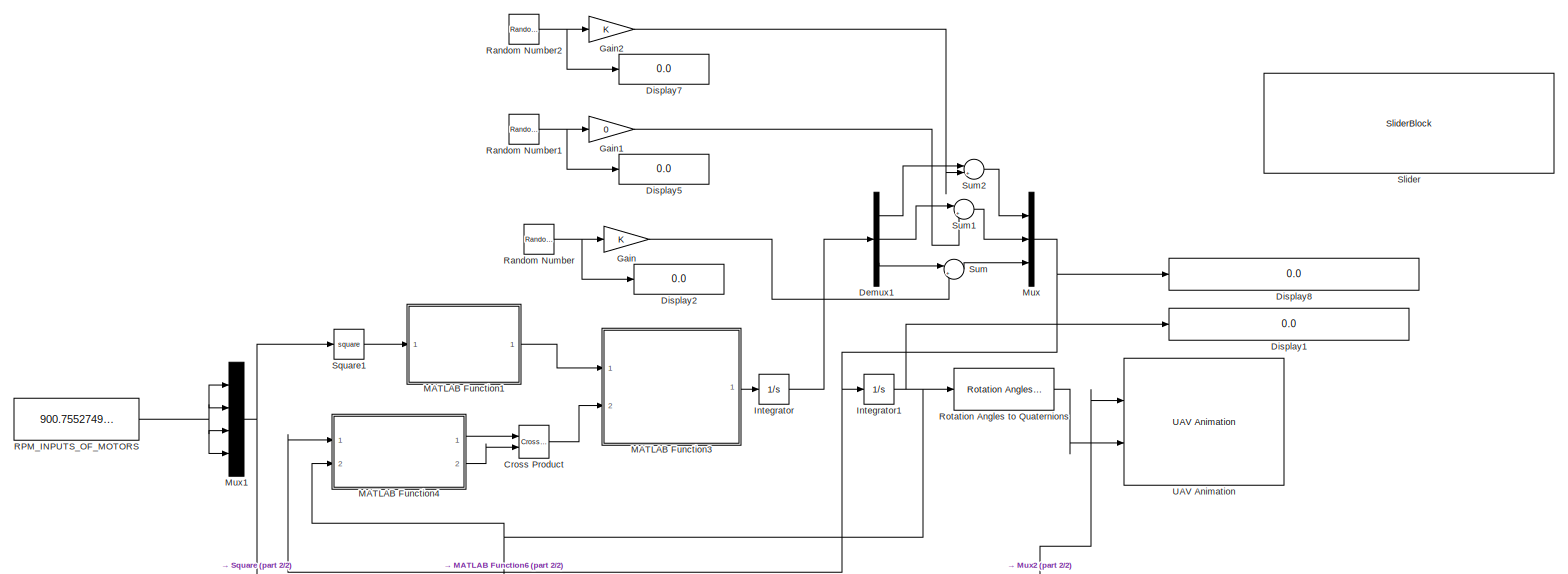
[diagram: root canvas - part 1/2, full width, middle band]
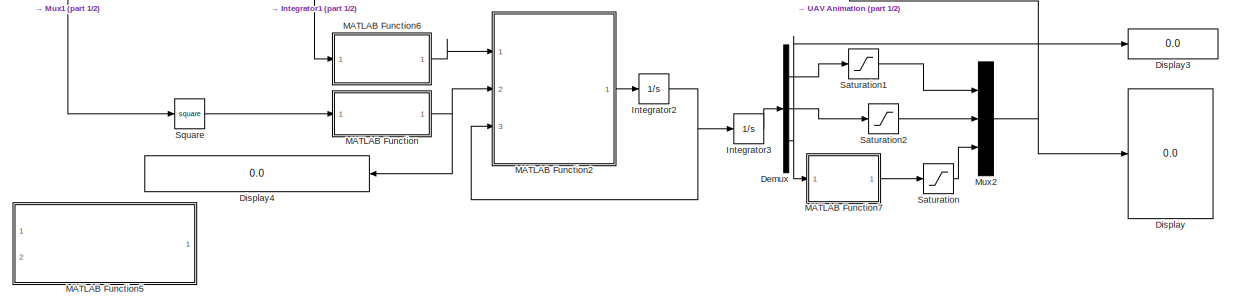
[diagram: root canvas - part 2/2, full width, bottom band]
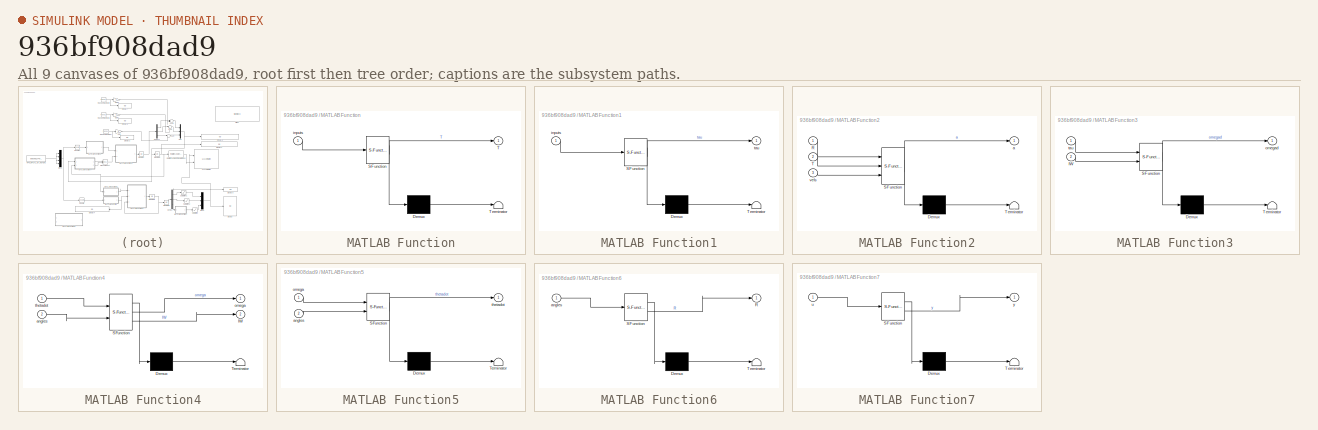
[diagram: thumbnail index - all 9 canvases of the model, root first then tree order]
MODEL slx_936bf908dad9
KIND model
CONFIG AbsTol = auto
CONFIG EnableMultiTasking = off
CONFIG FixedStep = auto
CONFIG MaxStep = auto
CONFIG MinStep = auto
CONFIG RelTol = 1e-3
CONFIG SampleTimeConstraint = Unconstrained
CONFIG Solver = VariableStepAuto
CONFIG SolverName = VariableStepAuto
CONFIG StartTime = 0.0
CONFIG StopTime = inf
BLOCK [Reference] Cross Product  REF=vrlib/Utilities/Cross Product
  Ports = [2, 1]
  SourceBlock = vrlib/Utilities/Cross Product
  SourceProductBaseCode = SL
  SourceType = Cross Product
BLOCK [Demux] Demux
  Outputs = 3
  Ports = [1, 3]
BLOCK [Demux] Demux1
  Outputs = 3
  Ports = [1, 3]
BLOCK [Display] Display
  Decimation = 1
  Ports = [1]
BLOCK [Display] Display1
  Decimation = 1
  Ports = [1]
BLOCK [Display] Display2
  Decimation = 1
  Ports = [1]
BLOCK [Display] Display3
  Decimation = 1
  Ports = [1]
BLOCK [Display] Display4
  Decimation = 1
  NameLocation = top
  Ports = [1]
BLOCK [Display] Display5
  Decimation = 1
  Ports = [1]
BLOCK [Display] Display7
  Decimation = 1
  Ports = [1]
BLOCK [Display] Display8
  Decimation = 1
  Ports = [1]
BLOCK [Gain] Gain
BLOCK [Gain] Gain1
  Gain = 0
BLOCK [Gain] Gain2
BLOCK [Integrator] Integrator
  Ports = [1, 1]
BLOCK [Integrator] Integrator1
  Ports = [1, 1]
BLOCK [Integrator] Integrator2
  Ports = [1, 1]
BLOCK [Integrator] Integrator3
  Ports = [1, 1]
BLOCK [SubSystem] MATLAB Function
  ErrorFcn = Stateflow.Translate.translate
  PermitHierarchicalResolution = ExplicitOnly
  Ports = [1, 1]
  RequestExecContextInheritance = off
  SFBlockType = MATLAB Function
  TreatAsAtomicUnit = on
BLOCK [Demux] MATLAB Function/ Demux 
  Outputs = 1
  Ports = [1, 1]
BLOCK [S-Function] MATLAB Function/ SFunction 
  EnableBusSupport = on
  FunctionName = sf_sfun
  PortCounts = [1 2]
  Ports = [1, 2]
  SFcnIsStateOwnerBlock = off
  SFunctionDeploymentMode = off
  Tag = Stateflow S-Function 2
BLOCK [Terminator] MATLAB Function/ Terminator 
BLOCK [Outport] MATLAB Function/T
BLOCK [Inport] MATLAB Function/inputs
BLOCK [SubSystem] MATLAB Function1
  ErrorFcn = Stateflow.Translate.translate
  PermitHierarchicalResolution = ExplicitOnly
  Ports = [1, 1]
  RequestExecContextInheritance = off
  SFBlockType = MATLAB Function
  TreatAsAtomicUnit = on
BLOCK [Demux] MATLAB Function1/ Demux 
  Outputs = 1
  Ports = [1, 1]
BLOCK [S-Function] MATLAB Function1/ SFunction 
  EnableBusSupport = on
  FunctionName = sf_sfun
  PortCounts = [1 2]
  Ports = [1, 2]
  SFcnIsStateOwnerBlock = off
  SFunctionDeploymentMode = off
  Tag = Stateflow S-Function 1
BLOCK [Terminator] MATLAB Function1/ Terminator 
BLOCK [Inport] MATLAB Function1/inputs
BLOCK [Outport] MATLAB Function1/tau
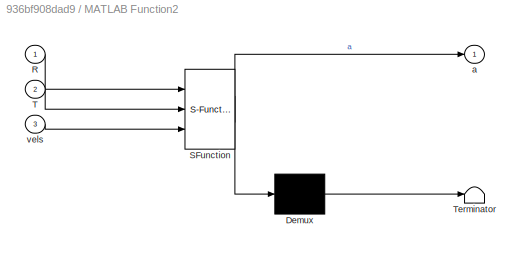
BLOCK [SubSystem] MATLAB Function2
  ErrorFcn = Stateflow.Translate.translate
  PermitHierarchicalResolution = ExplicitOnly
  Ports = [3, 1]
  RequestExecContextInheritance = off
  SFBlockType = MATLAB Function
  TreatAsAtomicUnit = on
BLOCK [Demux] MATLAB Function2/ Demux 
  Outputs = 1
  Ports = [1, 1]
BLOCK [S-Function] MATLAB Function2/ SFunction 
  EnableBusSupport = on
  FunctionName = sf_sfun
  PortCounts = [3 2]
  Ports = [3, 2]
  SFcnIsStateOwnerBlock = off
  SFunctionDeploymentMode = off
  Tag = Stateflow S-Function 3
BLOCK [Terminator] MATLAB Function2/ Terminator 
BLOCK [Inport] MATLAB Function2/R
BLOCK [Inport] MATLAB Function2/T
  Port = 2
BLOCK [Outport] MATLAB Function2/a
BLOCK [Inport] MATLAB Function2/vels
  Port = 3
BLOCK [SubSystem] MATLAB Function3
  ErrorFcn = Stateflow.Translate.translate
  PermitHierarchicalResolution = ExplicitOnly
  Ports = [2, 1]
  RequestExecContextInheritance = off
  SFBlockType = MATLAB Function
  TreatAsAtomicUnit = on
BLOCK [Demux] MATLAB Function3/ Demux 
  Outputs = 1
  Ports = [1, 1]
BLOCK [S-Function] MATLAB Function3/ SFunction 
  EnableBusSupport = on
  FunctionName = sf_sfun
  PortCounts = [2 2]
  Ports = [2, 2]
  SFcnIsStateOwnerBlock = off
  SFunctionDeploymentMode = off
  Tag = Stateflow S-Function 4
BLOCK [Terminator] MATLAB Function3/ Terminator 
BLOCK [Inport] MATLAB Function3/IW
  Port = 2
BLOCK [Outport] MATLAB Function3/omegad
BLOCK [Inport] MATLAB Function3/tau
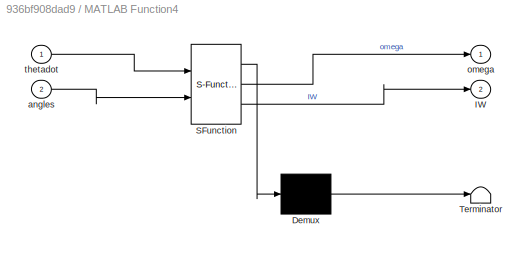
BLOCK [SubSystem] MATLAB Function4
  ErrorFcn = Stateflow.Translate.translate
  PermitHierarchicalResolution = ExplicitOnly
  Ports = [2, 2]
  RequestExecContextInheritance = off
  SFBlockType = MATLAB Function
  TreatAsAtomicUnit = on
BLOCK [Demux] MATLAB Function4/ Demux 
  Outputs = 1
  Ports = [1, 1]
BLOCK [S-Function] MATLAB Function4/ SFunction 
  EnableBusSupport = on
  FunctionName = sf_sfun
  PortCounts = [2 3]
  Ports = [2, 3]
  SFcnIsStateOwnerBlock = off
  SFunctionDeploymentMode = off
  Tag = Stateflow S-Function 5
BLOCK [Terminator] MATLAB Function4/ Terminator 
BLOCK [Outport] MATLAB Function4/IW
  Port = 2
BLOCK [Inport] MATLAB Function4/angles
  Port = 2
BLOCK [Outport] MATLAB Function4/omega
BLOCK [Inport] MATLAB Function4/thetadot
BLOCK [SubSystem] MATLAB Function5
  Commented = on
  ErrorFcn = Stateflow.Translate.translate
  PermitHierarchicalResolution = ExplicitOnly
  Ports = [2, 1]
  RequestExecContextInheritance = off
  SFBlockType = MATLAB Function
  TreatAsAtomicUnit = on
BLOCK [Demux] MATLAB Function5/ Demux 
  Outputs = 1
  Ports = [1, 1]
BLOCK [S-Function] MATLAB Function5/ SFunction 
  EnableBusSupport = on
  FunctionName = sf_sfun
  PortCounts = [2 2]
  Ports = [2, 2]
  SFcnIsStateOwnerBlock = off
  SFunctionDeploymentMode = off
  Tag = Stateflow S-Function 6
BLOCK [Terminator] MATLAB Function5/ Terminator 
BLOCK [Inport] MATLAB Function5/angles
  Port = 2
BLOCK [Inport] MATLAB Function5/omega
BLOCK [Outport] MATLAB Function5/thetadot
BLOCK [SubSystem] MATLAB Function6
  ErrorFcn = Stateflow.Translate.translate
  PermitHierarchicalResolution = ExplicitOnly
  Ports = [1, 1]
  RequestExecContextInheritance = off
  SFBlockType = MATLAB Function
  TreatAsAtomicUnit = on
BLOCK [Demux] MATLAB Function6/ Demux 
  Outputs = 1
  Ports = [1, 1]
BLOCK [S-Function] MATLAB Function6/ SFunction 
  EnableBusSupport = on
  FunctionName = sf_sfun
  PortCounts = [1 2]
  Ports = [1, 2]
  SFcnIsStateOwnerBlock = off
  SFunctionDeploymentMode = off
  Tag = Stateflow S-Function 7
BLOCK [Terminator] MATLAB Function6/ Terminator 
BLOCK [Outport] MATLAB Function6/R
BLOCK [Inport] MATLAB Function6/angles
BLOCK [SubSystem] MATLAB Function7
  ErrorFcn = Stateflow.Translate.translate
  PermitHierarchicalResolution = ExplicitOnly
  Ports = [1, 1]
  RequestExecContextInheritance = off
  SFBlockType = MATLAB Function
  TreatAsAtomicUnit = on
BLOCK [Demux] MATLAB Function7/ Demux 
  Outputs = 1
  Ports = [1, 1]
BLOCK [S-Function] MATLAB Function7/ SFunction 
  EnableBusSupport = on
  FunctionName = sf_sfun
  PortCounts = [1 2]
  Ports = [1, 2]
  SFcnIsStateOwnerBlock = off
  SFunctionDeploymentMode = off
  Tag = Stateflow S-Function 8
BLOCK [Terminator] MATLAB Function7/ Terminator 
BLOCK [Inport] MATLAB Function7/u
BLOCK [Outport] MATLAB Function7/y
BLOCK [Mux] Mux
  DisplayOption = bar
  Inputs = 3
  Ports = [3, 1]
BLOCK [Mux] Mux1
  DisplayOption = bar
  Ports = [4, 1]
BLOCK [Mux] Mux2
  DisplayOption = bar
  Inputs = 3
  Ports = [3, 1]
BLOCK [Constant] RPM_INPUTS_OF_MOTORS
  Value = 900.7552749360614
BLOCK [RandomNumber] Random Number
BLOCK [RandomNumber] Random Number1
BLOCK [RandomNumber] Random Number2
BLOCK [Reference] Rotation Angles to Quaternions  REF=sharedtransform/Rotation Angles to Quaternions
  AttributesFormatString = Rotation Order: %<rotationOrder>
  Ports = [1, 1]
  SourceBlock = sharedtransform/Rotation Angles to Quaternions
  SourceProductBaseCode = AE,PW,MT,VE,VP
  SourceType = Ang2Quat
BLOCK [Saturate] Saturation
  UpperLimit = 5
BLOCK [Saturate] Saturation1
  LowerLimit = -100
  UpperLimit = 100
BLOCK [Saturate] Saturation2
  LowerLimit = 100
  UpperLimit = 100
BLOCK [SliderBlock] Slider
  ScaleMax = 1500
BLOCK [Math] Square
  Operator = square
  Ports = [1, 1]
BLOCK [Math] Square1
  Operator = square
  Ports = [1, 1]
BLOCK [Sum] Sum
  Inputs = |++
  Ports = [2, 1]
BLOCK [Sum] Sum1
  Inputs = |++
  Ports = [2, 1]
BLOCK [Sum] Sum2
  Inputs = |++
  Ports = [2, 1]
BLOCK [Reference] UAV Animation  REF=robotuavlib/UAV Animation
  Ports = [2]
  SourceBlock = robotuavlib/UAV Animation
  SourceProductBaseCode = ROBOTICS_UAV_LIB
  SourceType = robotics.sluav.internal.system.UAVAnimation
LINE Cross Product:1 -> MATLAB Function3:2
LINE Demux1:1 -> Sum2:1
LINE Demux1:2 -> Sum1:1
LINE Demux1:3 -> Sum:1
LINE Demux:1 -> Saturation1:1
LINE Demux:2 -> Saturation2:1
NET Demux:3 -> Display3:1, MATLAB Function7:1
LINE Gain1:1 -> Sum1:2
LINE Gain2:1 -> Sum2:2
LINE Gain:1 -> Sum:2
NET Integrator1:1 -> Display1:1, MATLAB Function4:2, MATLAB Function6:1, Rotation Angles to Quaternions:1
NET Integrator2:1 -> Integrator3:1, MATLAB Function2:3
LINE Integrator3:1 -> Demux:1
LINE Integrator:1 -> Demux1:1
LINE MATLAB Function1:1 -> MATLAB Function3:1
LINE MATLAB Function2:1 -> Integrator2:1
LINE MATLAB Function3:1 -> Integrator:1
LINE MATLAB Function4:1 -> Cross Product:1
LINE MATLAB Function4:2 -> Cross Product:2
LINE MATLAB Function6:1 -> MATLAB Function2:1
LINE MATLAB Function7:1 -> Saturation:1
NET MATLAB Function:1 -> Display4:1, MATLAB Function2:2
NET Mux1:1 -> Square1:1, Square:1
NET Mux2:1 -> Display:1, UAV Animation:1
NET Mux:1 -> Display8:1, Integrator1:1, MATLAB Function4:1
NET RPM_INPUTS_OF_MOTORS:1 -> Mux1:1, Mux1:2, Mux1:3, Mux1:4
NET Random Number1:1 -> Display5:1, Gain1:1
NET Random Number2:1 -> Display7:1, Gain2:1
NET Random Number:1 -> Display2:1, Gain:1
LINE Rotation Angles to Quaternions:1 -> UAV Animation:2
LINE Saturation1:1 -> Mux2:1
LINE Saturation2:1 -> Mux2:2
LINE Saturation:1 -> Mux2:3
LINE Square1:1 -> MATLAB Function1:1
LINE Square:1 -> MATLAB Function:1
LINE Sum1:1 -> Mux:2
LINE Sum2:1 -> Mux:1
LINE Sum:1 -> Mux:3
note: NET lines group one-source signal fan-out (src -> all destinations, sorted); 1:1 wires keep LINE
CHART MATLAB Function1 states=1 transitions=1
  STATE_LABEL 'eML_blk_kernel()'
  STATE_LABEL 'SCRIPT:\n% Compute torques, given current inputs, length, drag coefficient, and thrust coefficient.\nfunction tau = torques(inputs)\n    g = 9.81;\n    m = 0.5;\n    L = 0.25;\n    k = 3e-6;\n    b = 1e-7;\n    I = diag([5e-3, 5e-3, 10e-3]);\n    kd = 0.25;\n    \ntau = [\n        L * k * (inputs(1) - inputs(3))\n        L * k * (inputs(2) - inputs(4))\n        b * (inputs(1) - inputs(2) + inputs(3) - inputs(4)...<+13ch>'
CHART MATLAB Function states=1 transitions=1
  STATE_LABEL 'eML_blk_kernel()'
  STATE_LABEL 'SCRIPT:\nfunction T = thrust(inputs)\n       g = 9.81;\n    m = 0.5;\n    L = 0.25;\n    k = 3e-6;\n    b = 1e-7;\n    I = diag([5e-3, 5e-3, 10e-3]);\n    kd = 0.25;\n \n    T = [0; 0; k * sum(inputs)];\nend\n\n\n'
CHART MATLAB Function2 states=1 transitions=1
  STATE_LABEL 'eML_blk_kernel()'
  STATE_LABEL 'SCRIPT:\n% Compute acceleration in inertial reference frame\n% Parameters:\n%   g: gravity acceleration\n%   m: mass of quadcopter\n%   k: thrust coefficient\n%   kd: global drag coefficient\n     \nfunction a = acceleration(R,T,vels)\n    g = 9.81;\n    m = 0.5;\n    L = 0.25;\n    k = 3e-6;\n    b = 1e-7;\n    I = diag([5e-3, 5e-3, 10e-3]);\n    kd = 0.5;\n \n    gravity = [0; 0; -g];\n    %R = rotation(angles);\n...<+77ch>'
CHART MATLAB Function3 states=1 transitions=1
  STATE_LABEL 'eML_blk_kernel()'
  STATE_LABEL 'SCRIPT:\n% Compute angular acceleration in body frame\n% Parameters:\n%   I: inertia matrix\nfunction omegad = angular_acceleration(tau, IW)\n%     g = 9.81;\n%     m = 0.5;\n%     L = 0.25;\n%     k = 3e-6;\n%     b = 1e-7;\n    I = diag([5e-3 5e-3  10e-3]);\n%     kd = 0.25;\n    omegad = I\\(tau - IW);\nend\n'
CHART MATLAB Function4 states=1 transitions=1
  STATE_LABEL 'eML_blk_kernel()'
  STATE_LABEL 'SCRIPT:\n% Convert derivatives of roll, pitch, yaw to omega.\nfunction [omega,IW]= thetadot2omega(thetadot, angles)\n    phi = angles(1);\n    theta = angles(2);\n    psi = angles(3);\n    W = [\n        1, 0, -sin(theta);\n        0, cos(phi), cos(theta)*sin(phi);\n        0, -sin(phi), cos(theta)*cos(phi)];\n    omega = W *thetadot;\n    I = diag([5e-3 5e-3  10e-3]);\n    IW=I*omega;\nend\n'
CHART MATLAB Function5 states=1 transitions=1
  STATE_LABEL 'eML_blk_kernel()'
  STATE_LABEL 'SCRIPT:\n\n% Convert omega to roll, pitch, yaw derivatives\nfunction thetadot = omega2thetadot(omega, angles)\n    phi = angles(1);\n    theta = angles(2);\n    psi = angles(3);\n    W = [1, 0, -sin(theta)\n         0, cos(phi), cos(theta)*sin(phi)\n         0, -sin(phi), cos(theta)*cos(phi)];\n    thetadot = W\\omega;\nend\n'
CHART MATLAB Function6 states=1 transitions=1
  STATE_LABEL 'eML_blk_kernel()'
  STATE_LABEL 'SCRIPT:\nfunction R = rotation(angles)\nphi = angles(3);\ntheta = angles(2);\npsi = angles(1);\nR = zeros(3);\nR(:, 1) = [\ncos(phi) * cos(theta)\ncos(theta) * sin(phi)\n- sin(theta)\n];\nR(:, 2) = [\ncos(phi) * sin(theta) * sin(psi) - cos(psi) * sin(phi)\ncos(phi) * cos(psi) + sin(phi) * sin(theta) * sin(psi)\ncos(theta) * sin(psi)\n];\nR(:, 3) = [\nsin(phi) * sin(psi) + cos(phi) * cos(psi) * sin(theta)\ncos(psi) ...<+74ch>'
CHART MATLAB Function7 states=1 transitions=1
  STATE_LABEL 'eML_blk_kernel()'
  STATE_LABEL "SCRIPT:\nfunction y = fcn(u)\nif(u<0)\n    y=0;\nelse\n    y=u';\n\nend\n"
CHART  states=0 transitions=0
CHART  states=0 transitions=0
CHART  states=0 transitions=0
CHART  states=0 transitions=0
CHART  states=0 transitions=0
CHART  states=0 transitions=0
CHART  states=0 transitions=0
CHART  states=0 transitions=0
